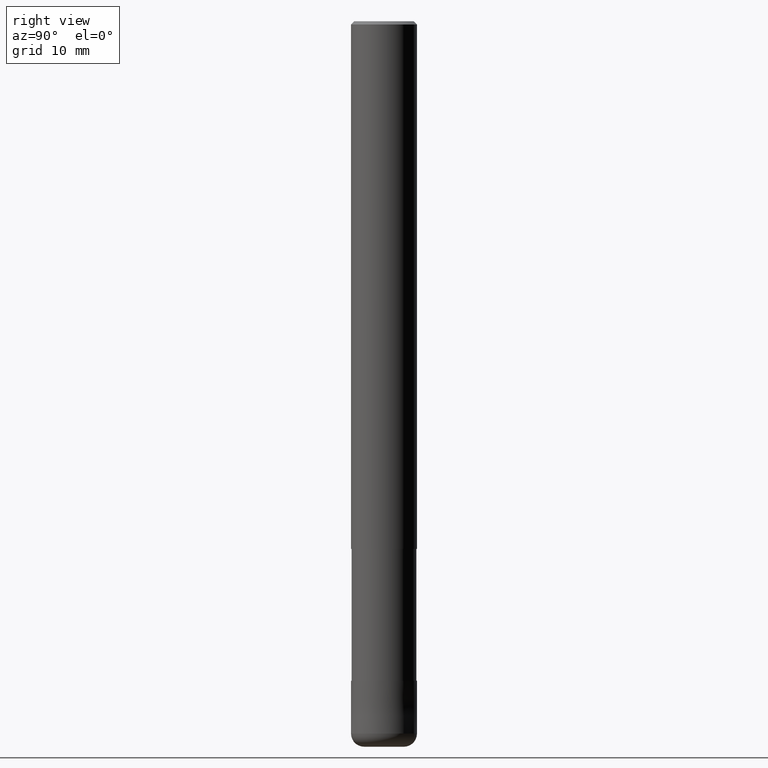
[diagram: clean part render]
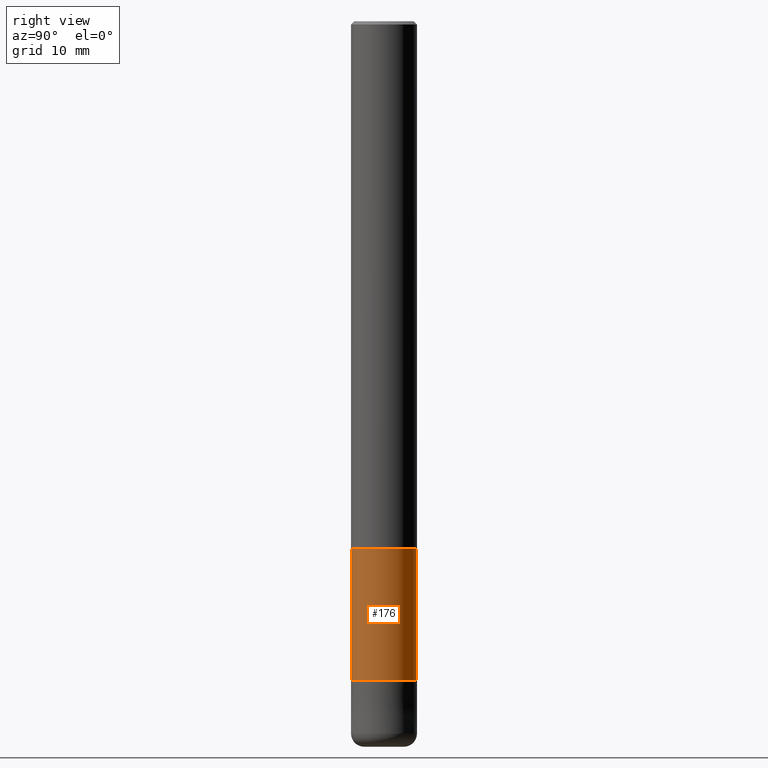
[diagram: same view with one face highlighted and labeled with its STEP entity id]
A machine part, right view. The second image highlights one B-rep face of the part: STEP entity #176.
In plain terms, the highlighted cylindrical surface (edge-blend (fillet) strip) has radius 4.91 mm, axis along (-0, -0, 1).
Its self-contained STEP definition (entity closure, byte-faithful):
#100=VERTEX_POINT('',#238);
#104=VERTEX_POINT('',#242);
#124=VERTEX_POINT('',#265);
#144=EDGE_CURVE('',#104,#100,#288,.T.);
#166=EDGE_CURVE('',#104,#184,#314,.T.);
#176=ADVANCED_FACE('',(#324),#325,.T.);
#184=VERTEX_POINT('',#334);
#206=EDGE_CURVE('',#184,#124,#359,.T.);
#208=EDGE_CURVE('',#124,#100,#361,.T.);
#238=CARTESIAN_POINT('',(6.01275596695018E-016,-4.90995,-80.0));
#242=CARTESIAN_POINT('',(0.0,4.90995,-80.0));
#265=CARTESIAN_POINT('',(6.01275596695018E-016,-4.90995,-100.0));
#288=CIRCLE('',#444,4.90995);
#314=LINE('',#474,#475);
#324=FACE_OUTER_BOUND('',#491,.T.);
#325=CYLINDRICAL_SURFACE('',#492,4.90995);
#334=CARTESIAN_POINT('',(0.0,4.90995,-100.0));
#359=CIRCLE('',#534,4.90995);
#361=LINE('',#537,#538);
#444=AXIS2_PLACEMENT_3D('',#613,#614,#615);
#474=CARTESIAN_POINT('',(-6.01275596695018E-016,4.90995,-90.0));
#475=VECTOR('',#656,1.0);
#491=EDGE_LOOP('',(#666,#667,#668,#669));
#492=AXIS2_PLACEMENT_3D('',#670,#671,#672);
#534=AXIS2_PLACEMENT_3D('',#712,#713,#714);
#537=CARTESIAN_POINT('',(6.01275596695018E-016,-4.90995,-90.0));
#538=VECTOR('',#715,1.0);
#613=CARTESIAN_POINT('',(0.0,0.0,-80.0));
#614=DIRECTION('',(0.0,0.0,-1.0));
#615=DIRECTION('',(0.0,1.0,0.0));
#656=DIRECTION('',(0.0,0.0,-1.0));
#666=ORIENTED_EDGE('',*,*,#166,.F.);
#667=ORIENTED_EDGE('',*,*,#144,.T.);
#668=ORIENTED_EDGE('',*,*,#208,.F.);
#669=ORIENTED_EDGE('',*,*,#206,.F.);
#670=CARTESIAN_POINT('',(0.0,0.0,-90.0));
#671=DIRECTION('',(-0.0,-0.0,1.0));
#672=DIRECTION('',(0.0,1.0,0.0));
#712=CARTESIAN_POINT('',(0.0,0.0,-100.0));
#713=DIRECTION('',(0.0,0.0,-1.0));
#714=DIRECTION('',(0.0,1.0,0.0));
#715=DIRECTION('',(-0.0,-0.0,1.0));